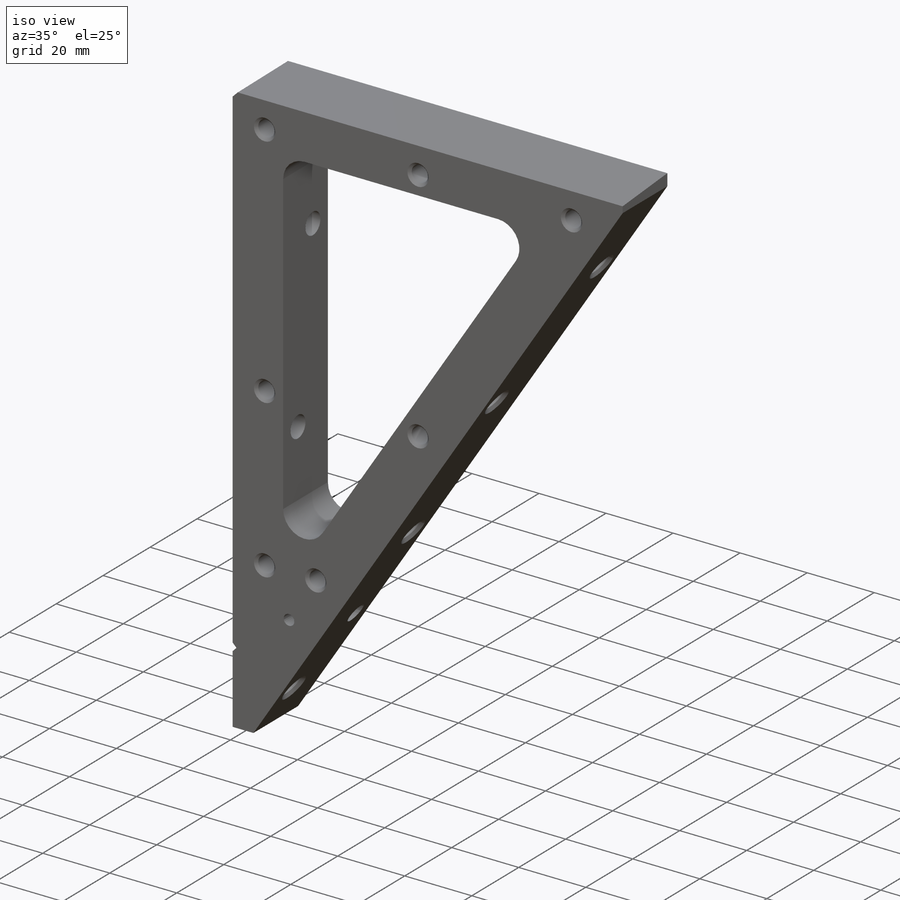
[diagram: iso view]
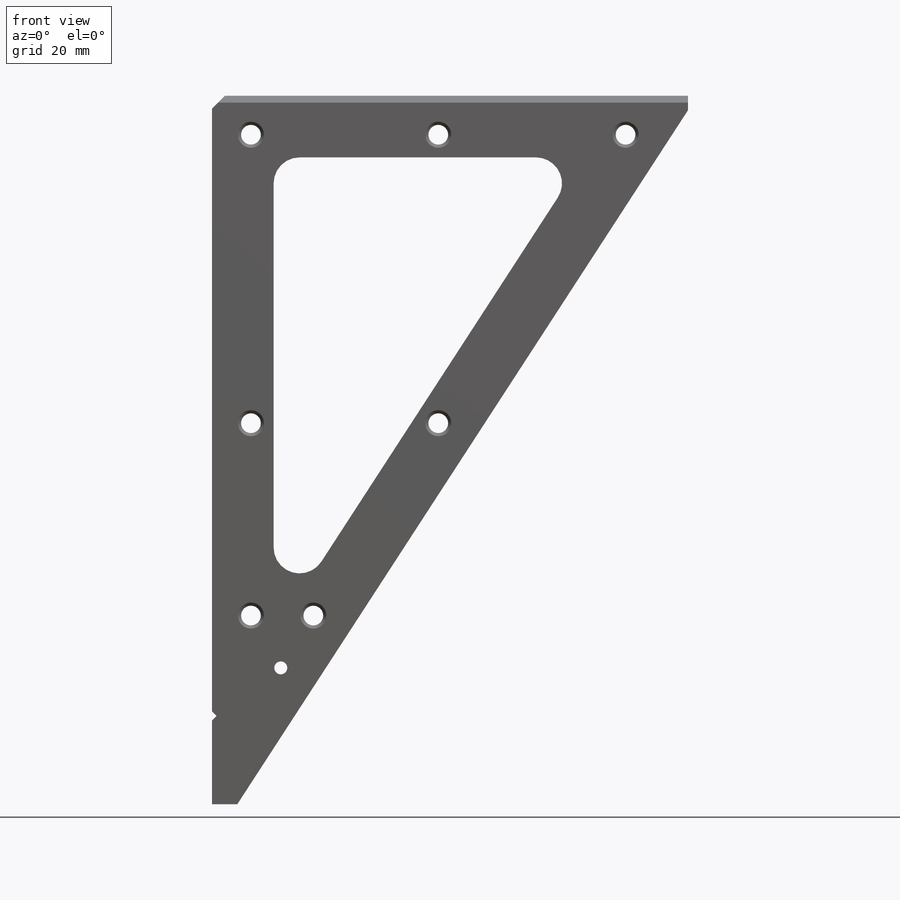
[diagram: front view]
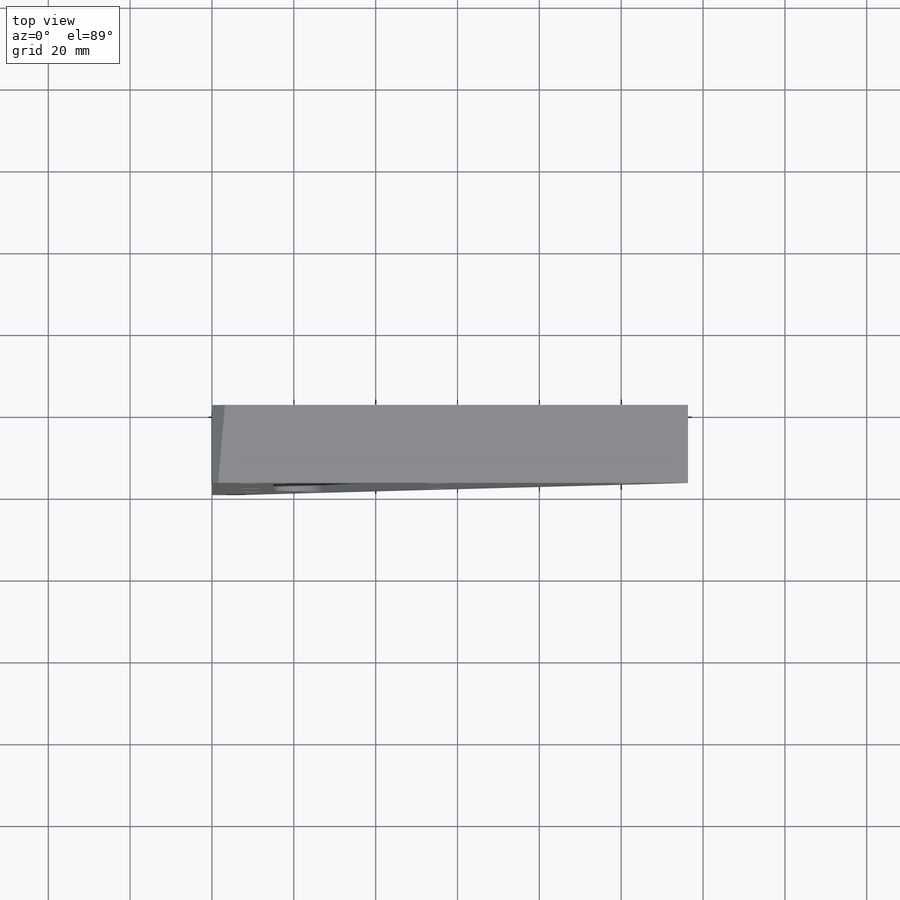
[diagram: top view]
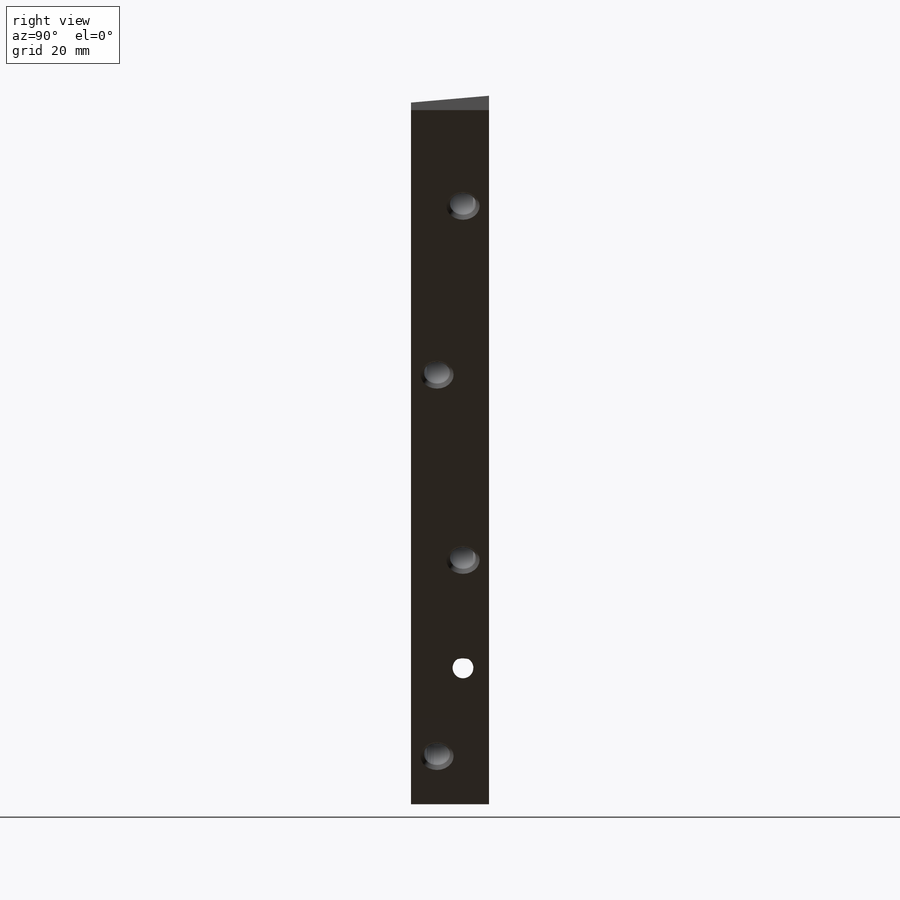
[diagram: right view]
SOLIDWORKS PART (.sldprt)
format: sldprt  version: not decoded by parser v0  size: 522,240 bytes
history: native  units: mm
features: sketch x14, hole x4, cut_extrude x4, material x1, extrude x1, chamfer x1 + 1 further entry (+10 scaffold rows collapsed)
feature tree (36):
  scaffold x10  (default folders/planes/origin — collapsed)
  material  "6061-T6 Al"
  "Origin"  ID=392984584
  sketch  "Sketch1"  dims[c1.D4=6.35mm c1.D1=~3.63393mm c2.D1=85.0deg c2.D2=38.1mm c2.D3=12.7mm c3.D2=~192.238702mm c3.D3=~124.841273mm c3.D4=~229.218371mm c4.D3=~124.841273mm c4.D2=~229.218371mm c5.D2=57.0deg c5.D3=118.618mm c5.D5=~182.655702mm c6.D5=33.0deg c6.D3=118.618mm c6.D1=15.0622mm]
  extrude  "Boss-Extrude1"  Depth=19.05mm
  sketch  "Sketch2"  dims[c1.D1=9.525mm c1.D2=9.525mm c1.D3=9.525mm c2.D1=6.35mm c2.D2=6.35mm c2.D3=6.35mm]
  hole  "#10-32 Tapped Hole1"  Diameter=4.826mm Depth=19.05mm
  sketch  "Sketch4"  dims[c1.D1=9.525mm c1.D2=9.525mm c1.D3=9.525mm c1.D4=~70.487421mm c2.D1=0.0mm c2.D2=9.525mm c2.D3=~55.300066mm c2.D4=~101.075132mm c2.D5=0.0mm c2.D6=9.525mm c2.D7=~80.012421mm c2.D8=~127.02093mm]
  sketch  "Sketch3"  dims[hole-wizard template sketch: 46 standard entries collapsed; hole parameters kept: c15.Thread Major Dia.=4.826mm c15.Thru Tap Drill Depth=19.05mm c15.Near C'Sink Dia.=6.3754mm c15.D4=~3.666174mm c15.Near C'Sink Angle=90.0deg c15.Far C'Sink Dia.=6.3754mm c15.D6=~9.919017mm c15.Far C'Sink Angle=90.0deg]
  hole  "1/4-20 Tapped Hole1"  Diameter=5.1054mm Depth=29.21mm
  sketch  "Sketch6"  dims[c1.D1=50.8mm c1.D2=41.275mm c2.D1=0.0mm c2.D2=42.8498mm c2.D3=92.075mm c2.D4=144.4498mm c3.D1=0.0mm c3.D2=42.8498mm c3.D3=92.075mm c3.D4=144.4498mm c3.D5=12.7mm c3.D6=6.35mm]
  sketch  "Sketch5"  dims[hole-wizard template sketch: 27 standard entries collapsed; hole parameters kept: c8.Tap Drill Depth=29.21mm c8.Thread Major Dia.=6.35mm c8.Thread Depth=15.24mm c8.Near C'Sink Dia.=8.128mm c8.D6=~4.399409mm c8.Near C'Sink Angle=90.0deg c8.D7=~14.816244mm c8.Drill Angle=118.0deg]
  hole  "1/4-20 Tapped Hole2"  Diameter=5.1054mm Depth=21.59mm
  sketch  "Sketch8"  dims[c1.D1=0.0mm c1.D2=25.4mm c1.D3=82.55mm c1.D4=136.525mm c1.D5=185.7248mm c2.D1=0.0mm c2.D2=25.4mm c2.D3=82.55mm c2.D4=136.525mm c2.D5=185.7248mm c2.D6=6.35mm c2.D7=6.35mm]
  sketch  "Sketch7"  dims[hole-wizard template sketch: 27 standard entries collapsed; hole parameters kept: c8.Tap Drill Depth=21.59mm c8.Thread Major Dia.=6.35mm c8.Thread Depth=15.24mm c8.Near C'Sink Dia.=8.128mm c8.D6=~4.399409mm c8.Near C'Sink Angle=90.0deg c8.D7=~14.816244mm c8.Drill Angle=118.0deg]
  chamfer  "Chamfer1"  Distance=3.175mm Angle=45deg
  sketch  "Sketch12"  dims[D1=9.525mm]
  cut_extrude  "Cut-Extrude1"  [1 undecoded]
  sketch  "Sketch13"  dims[c1.D1=19.05mm c2.D1=5.0deg c3.D1=19.05mm c4.D1=5.0deg]
  cut_extrude  "Cut-Extrude2"  [1 undecoded]
  sketch  "Sketch14"  dims[D1=2.286mm]
  cut_extrude  "Cut-Extrude3"  [1 undecoded]
  hole  "1/8 (0.125) Diameter Hole1"  Diameter=3.175mm Depth=19.05mm
  sketch  "Sketch16"  dims[D1=1.5748mm D2=1.5748mm]
  sketch  "Sketch15"  dims[hole-wizard template sketch: 60 standard entries collapsed; hole parameters kept: c18.Thru Hole Depth=19.05mm]
  sketch  "Sketch17"  dims[c1.D1=~4.586566mm c2.D1=45.0deg c2.D2=~5.211869mm c3.D2=45.0deg c3.D3=2.286mm c3.D4=21.59mm]
  cut_extrude  "Cut-Extrude4"  [1 undecoded]
decode coverage: 20 of 24 modeling features carry decoded parameters; 1 rows unclassified (native names shown)
note: ~ marks probable driven/reference dimensions
note: 4 parameter values undecoded
summary: no parameter record found for 4 features; Diameter pulled from absorbed wizard sketch
note: suppression state not decoded; provenance and decode notes live in map.json
